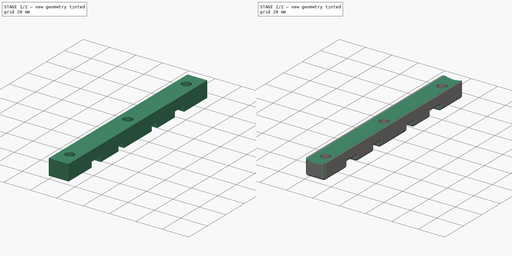
[diagram: build sequence overview — one tinted view per stage of 2, left to right]
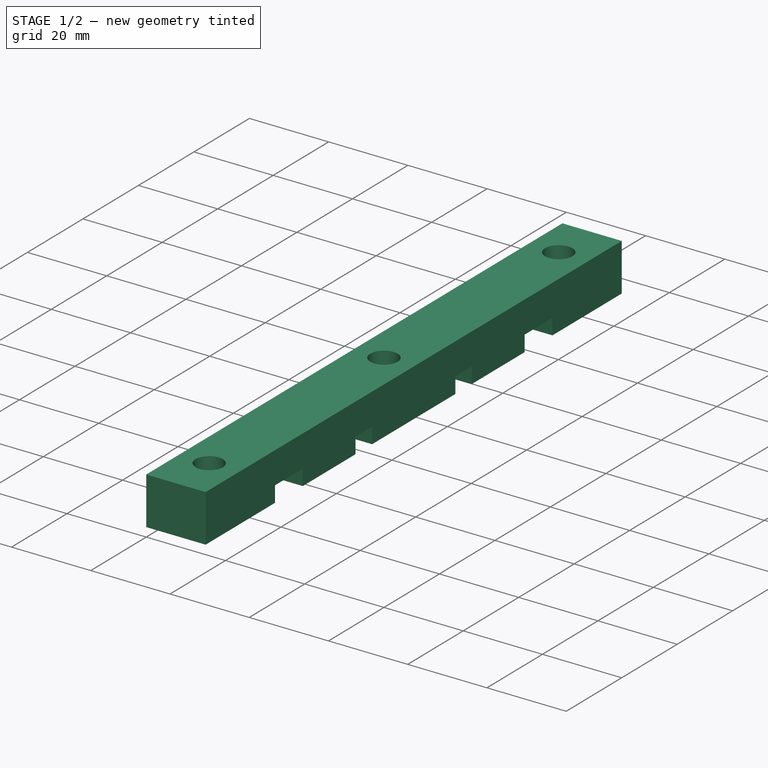
[diagram: stage 1 of 2 — iso view after this stage's code; geometry added in this stage tinted green]
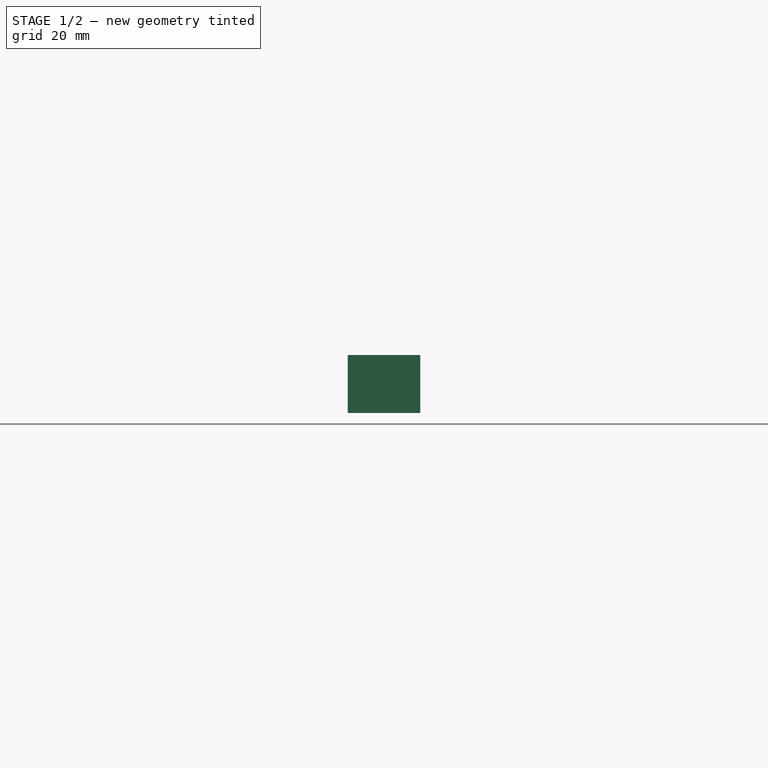
[diagram: stage 1 of 2 — front view after this stage's code; geometry added in this stage tinted green]
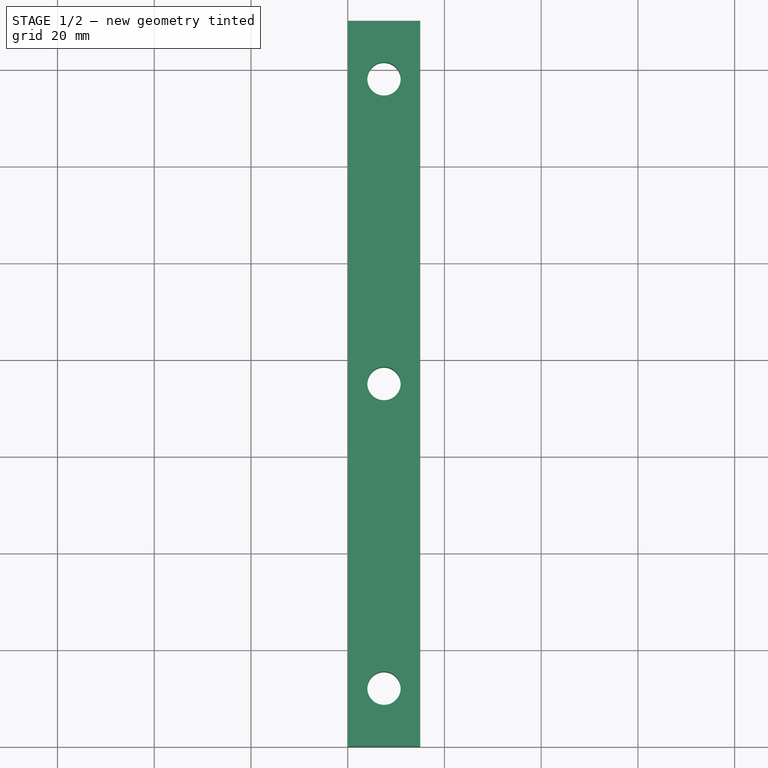
[diagram: stage 1 of 2 — top view after this stage's code; geometry added in this stage tinted green]
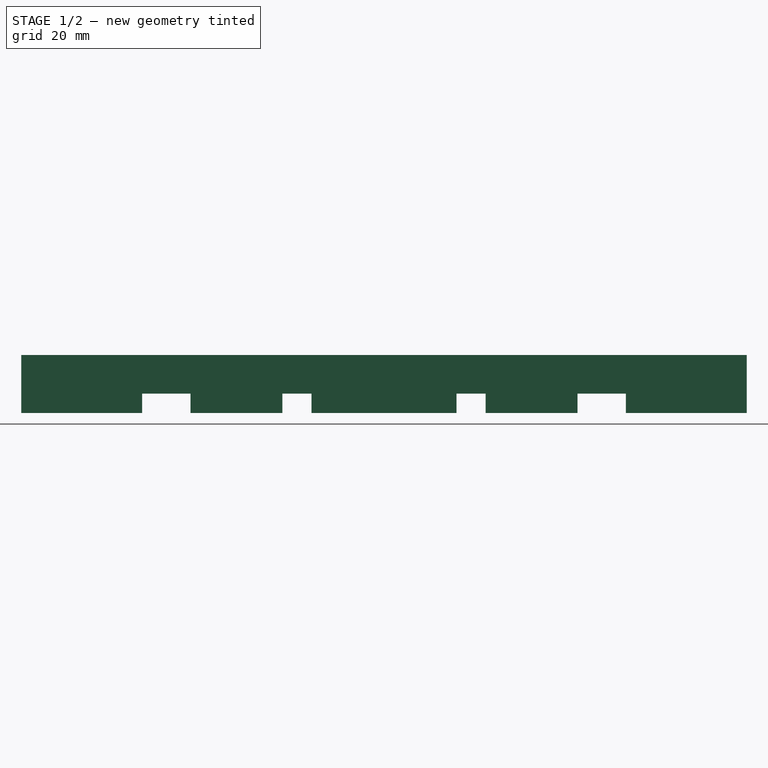
[diagram: stage 1 of 2 — right view after this stage's code; geometry added in this stage tinted green]
FCSTD DOCUMENT  (FreeCAD 0.19R24291 (Git))
Label: Flaschenhalter_Adapter_mit_Einsaetzen
License: All rights reserved
LicenseURL: http://en.wikipedia.org/wiki/All_rights_reserved
objects: Sketcher::SketchObject×3, PartDesign::Pocket×2, PartDesign::Pad×1, PartDesign::Fillet×1, PartDesign::Body×1
note: 12 computed .brp shape members not serialized (recipe doc carries the construction recipe); baked Part::Feature solids carry a one-line shape summary decoded from their .brp

FEATURE [Sketcher::SketchObject] Sketch
  FullyConstrained = true
  MapMode = 5
  Support = -> [XY_Plane]
  sketch-geometry (9):
    g0: LineSegment StartX=0 StartY=0 StartZ=0 EndX=15 EndY=0 EndZ=0
    g1: LineSegment StartX=15 StartY=0 StartZ=0 EndX=15 EndY=150 EndZ=0
    g2: LineSegment StartX=15 StartY=150 StartZ=0 EndX=0 EndY=150 EndZ=0
    g3: LineSegment StartX=0 StartY=150 StartZ=0 EndX=0 EndY=0 EndZ=0
    g4: Circle CenterX=7.5 CenterY=138 CenterZ=0 NormalX=0 NormalY=0 NormalZ=1 AngleXU=0 Radius=3.45
    g5: Circle CenterX=7.5 CenterY=75 CenterZ=0 NormalX=0 NormalY=0 NormalZ=1 AngleXU=0 Radius=3.45
    g6: Circle CenterX=7.5 CenterY=12 CenterZ=0 NormalX=0 NormalY=0 NormalZ=1 AngleXU=0 Radius=3.45
    g7: LineSegment StartX=7.5 StartY=138 StartZ=0 EndX=7.5 EndY=150 EndZ=0
    g8: LineSegment StartX=7.5 StartY=12 StartZ=0 EndX=7.5 EndY=0 EndZ=0
  constraints (26):
    c: Coincident(g0,g1)
    c: Coincident(g1,g2)
    c: Coincident(g2,g3)
    c: Coincident(g3,g0)
    c: Horizontal(g0)
    c: Horizontal(g2)
    c: Vertical(g1)
    c: Vertical(g3)
    c: Coincident(g0,g-1)
    c: DistanceY(g1,g1) = 150
    c: DistanceX(g2,g2) = 15
    c: Equal(g5,g4)
    c: Equal(g4,g6)
    c: Diameter(g4) = 6.9
    c: DistanceX(g0,g6) = 7.5
    c: DistanceX(g0,g5) = 7.5
    c: DistanceX(g0,g4) = 7.5
    c: DistanceY(g5,g4) = 63
    c: DistanceY(g6,g5) = 63
    c: Coincident(g7,g4)
    c: PointOnObject(g7,g2)
    c: Vertical(g7)
    c: Coincident(g8,g6)
    c: PointOnObject(g8,g0)
    c: Vertical(g8)
    c: Equal(g8,g7)
FEATURE [PartDesign::Pad] Pad
  Direction = (1,1,1)
  Length = 12
  Length2 = 100
  Profile = -> Sketch
  Type = 0
FEATURE [Sketcher::SketchObject] Sketch003
  FullyConstrained = true
  MapMode = 5
  Placement = pos=(0,0,0) rot=(0.57735,0.57735,0.57735;2.0944rad)
  Support = -> [YZ_Plane]
  sketch-geometry (18):
    g0: LineSegment StartX=25 StartY=0 StartZ=0 EndX=35 EndY=0 EndZ=0
    g1: LineSegment StartX=35 StartY=0 StartZ=0 EndX=35 EndY=4 EndZ=0
    g2: LineSegment StartX=35 StartY=4 StartZ=0 EndX=25 EndY=4 EndZ=0
    g3: LineSegment StartX=25 StartY=4 StartZ=0 EndX=25 EndY=0 EndZ=0
    g4: LineSegment StartX=54 StartY=4 StartZ=0 EndX=60 EndY=4 EndZ=0
    g5: LineSegment StartX=60 StartY=4 StartZ=0 EndX=60 EndY=0 EndZ=0
    g6: LineSegment StartX=60 StartY=0 StartZ=0 EndX=54 EndY=0 EndZ=0
    g7: LineSegment StartX=54 StartY=0 StartZ=0 EndX=54 EndY=4 EndZ=0
    g8: LineSegment StartX=115 StartY=4 StartZ=0 EndX=125 EndY=4 EndZ=0
    g9: LineSegment StartX=125 StartY=4 StartZ=0 EndX=125 EndY=0 EndZ=0
    g10: LineSegment StartX=125 StartY=0 StartZ=0 EndX=115 EndY=0 EndZ=0
    g11: LineSegment StartX=115 StartY=0 StartZ=0 EndX=115 EndY=4 EndZ=0
    g12: LineSegment StartX=90 StartY=0 StartZ=0 EndX=96 EndY=0 EndZ=0
    g13: LineSegment StartX=96 StartY=0 StartZ=0 EndX=96 EndY=4 EndZ=0
    g14: LineSegment StartX=96 StartY=4 StartZ=0 EndX=90 EndY=4 EndZ=0
    g15: LineSegment StartX=90 StartY=4 StartZ=0 EndX=90 EndY=0 EndZ=0
    g16: LineSegment StartX=35 StartY=0 StartZ=0 EndX=54 EndY=0 EndZ=0
    g17: LineSegment StartX=96 StartY=0 StartZ=0 EndX=115 EndY=0 EndZ=0
  constraints (52):
    c: Coincident(g0,g1)
    c: Coincident(g1,g2)
    c: Coincident(g2,g3)
    c: Coincident(g3,g0)
    c: Horizontal(g0)
    c: Horizontal(g2)
    c: Vertical(g1)
    c: Vertical(g3)
    c: PointOnObject(g0,g-1)
    c: Coincident(g4,g5)
    c: Coincident(g5,g6)
    c: Coincident(g6,g7)
    c: Coincident(g7,g4)
    c: Horizontal(g4)
    c: Horizontal(g6)
    c: Vertical(g5)
    c: Vertical(g7)
    c: PointOnObject(g5,g-1)
    c: Coincident(g8,g9)
    c: Coincident(g9,g10)
    c: Coincident(g10,g11)
    c: Coincident(g11,g8)
    c: Horizontal(g8)
    c: Horizontal(g10)
    c: Vertical(g9)
    c: Vertical(g11)
    c: PointOnObject(g10,g-1)
    c: DistanceX(g2,g2) = 10
    c: DistanceX(g8,g8) = 10
    c: Coincident(g12,g13)
    c: Coincident(g13,g14)
    c: Coincident(g14,g15)
    c: Coincident(g15,g12)
    c: Horizontal(g12)
    c: Horizontal(g14)
    c: Vertical(g13)
    c: Vertical(g15)
    c: PointOnObject(g12,g-1)
    c: DistanceX(g14,g14) = 6
    c: DistanceX(g4,g4) = 6
    c: Equal(g1,g7)
    c: Equal(g7,g13)
    c: Equal(g13,g9)
    c: DistanceY(g3,g3) = 4
    c: DistanceX(g-1,g0) = 25
    c: DistanceX(g-1,g9) = 125
    c: Coincident(g16,g0)
    c: Coincident(g16,g6)
    c: Coincident(g17,g12)
    c: Coincident(g17,g10)
    c: Equal(g17,g16)
    c: DistanceX(g5,g12) = 30
FEATURE [PartDesign::Pocket] Pocket002
  BaseFeature = -> Pad
  Length = 5
  Length2 = 100
  Profile = -> Sketch003
  Reversed = true
  Type = 1
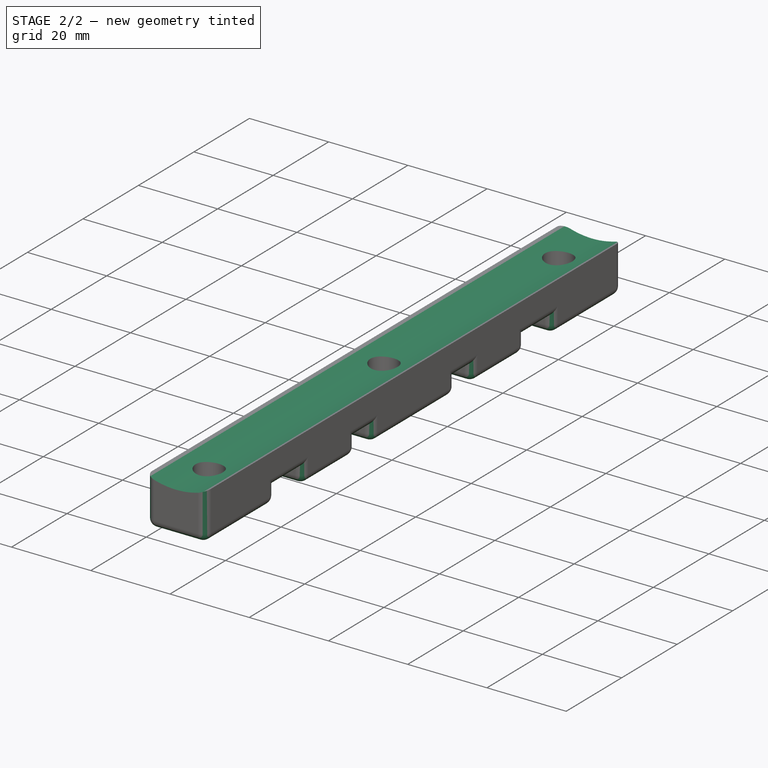
[diagram: stage 2 of 2 — iso view after this stage's code; geometry added in this stage tinted green]
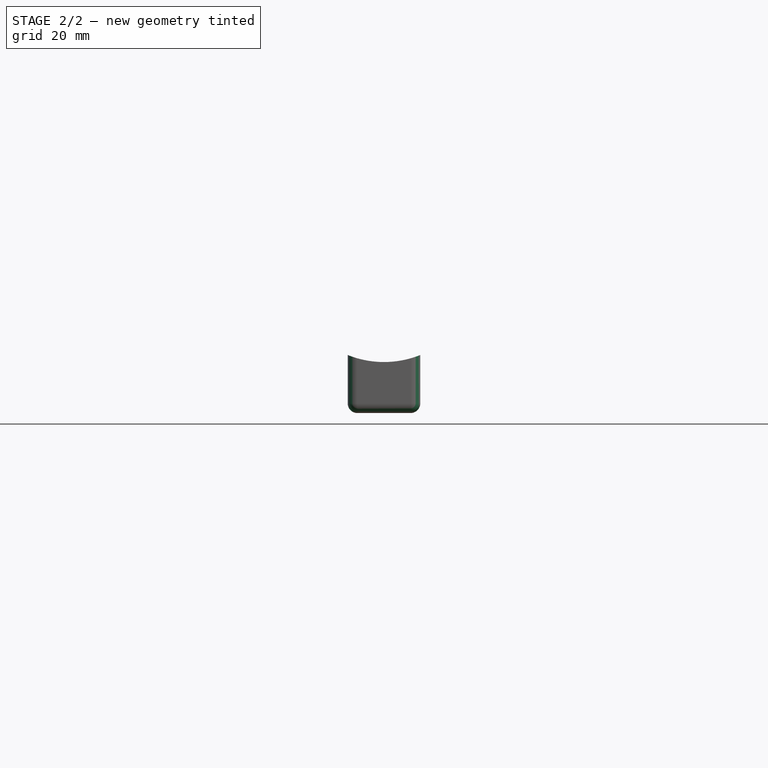
[diagram: stage 2 of 2 — front view after this stage's code; geometry added in this stage tinted green]
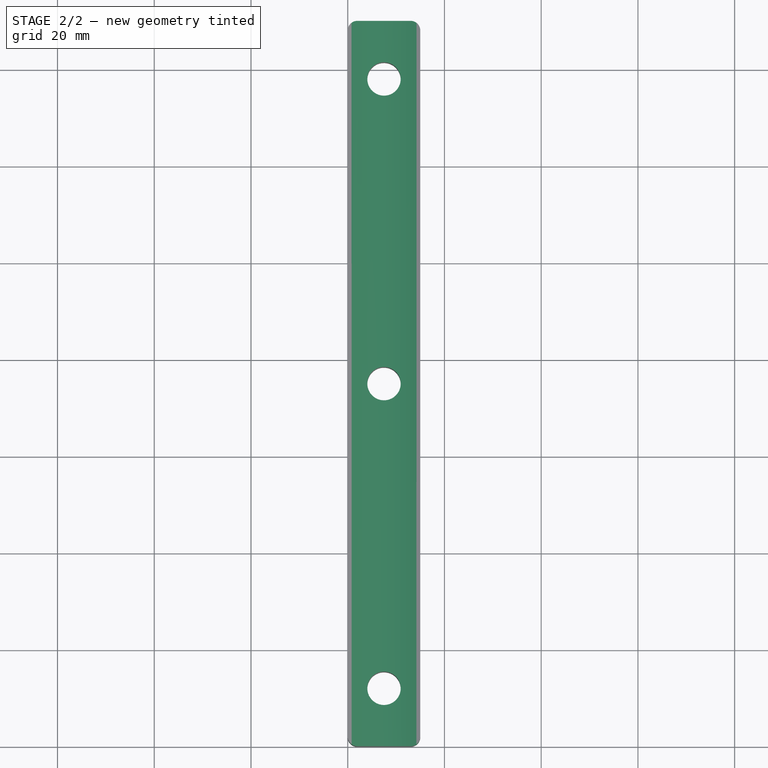
[diagram: stage 2 of 2 — top view after this stage's code; geometry added in this stage tinted green]
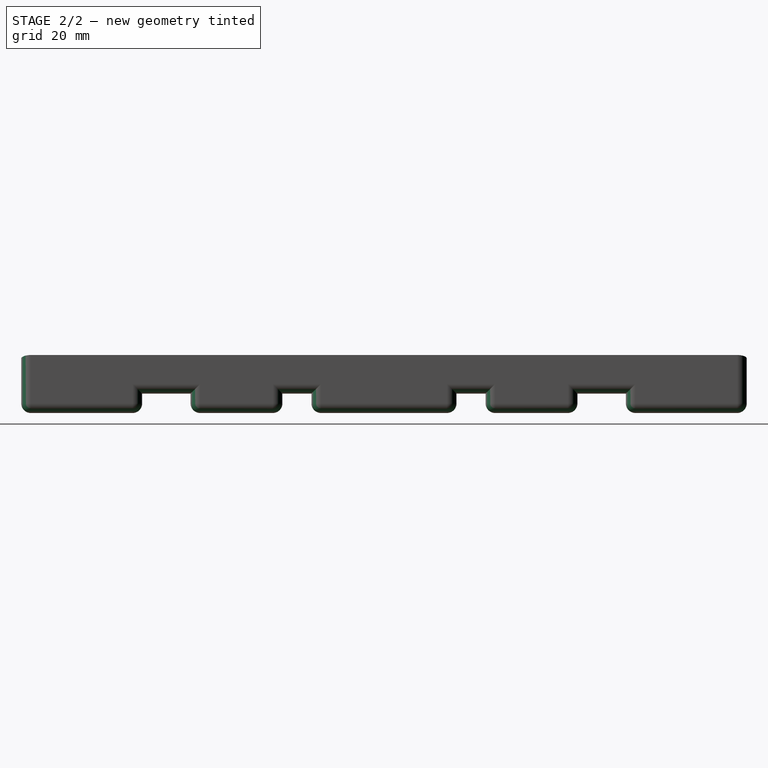
[diagram: stage 2 of 2 — right view after this stage's code; geometry added in this stage tinted green]
FEATURE [Sketcher::SketchObject] Sketch004
  FullyConstrained = true
  MapMode = 5
  Placement = pos=(0,0,0) rot=(1,0,0;1.5708rad)
  Support = -> [XZ_Plane]
  sketch-geometry (7):
    g0: Circle CenterX=7.5 CenterY=30.5405 CenterZ=0 NormalX=0 NormalY=0 NormalZ=1 AngleXU=0 Radius=20
    g1: LineSegment StartX=0 StartY=0 StartZ=0 EndX=15 EndY=0 EndZ=0
    g2: LineSegment StartX=0 StartY=0 StartZ=0 EndX=15 EndY=0 EndZ=0
    g3: LineSegment StartX=15 StartY=0 StartZ=0 EndX=15 EndY=12 EndZ=0
    g4: LineSegment StartX=15 StartY=12 StartZ=0 EndX=0 EndY=12 EndZ=0
    g5: LineSegment StartX=0 StartY=12 StartZ=0 EndX=0 EndY=0 EndZ=0
    g6: LineSegment StartX=7.5 StartY=10.5405 StartZ=0 EndX=7.5 EndY=12 EndZ=0
  constraints (21):
    c: Diameter(g0) = 40
    c: Coincident(g1,g-1)
    c: Horizontal(g1)
    c: DistanceX(g1,g1) = 15
    c: Coincident(g2,g3)
    c: Coincident(g3,g4)
    c: Coincident(g4,g5)
    c: Coincident(g5,g2)
    c: Horizontal(g2)
    c: Horizontal(g4)
    c: Vertical(g3)
    c: Vertical(g5)
    c: Coincident(g2,g-1)
    c: DistanceY(g3,g3) = 12
    c: DistanceX(g4,g4) = 15
    c: PointOnObject(g3,g0)
    c: PointOnObject(g4,g0)
    c: PointOnObject(g6,g0)
    c: PointOnObject(g6,g4)
    c: Vertical(g6)
    c: Perpendicular(g0,g6)
FEATURE [PartDesign::Pocket] Pocket003
  BaseFeature = -> Pocket002
  Length = 5
  Length2 = 100
  Profile = -> Sketch004
  Type = 1
FEATURE [PartDesign::Fillet] Fillet
  Base = -> Pocket003 [Edge9,Edge10,Edge11,Edge7,Edge6,Edge52,Edge5,Edge47,Edge46,Edge45,Edge44,Edge12,Edge1,Edge4,Edge2,Edge40,Edge16,Edge20,Edge36,Edge32,Edge24,Edge48,Edge66,Edge25,Edge13,Edge14,Edge15,Edge17,Edge18,Edge19,Edge21,Edge22,Edge23,Edge53,Edge56,Edge43,Edge42,Edge41,Edge57,Edge61,+8 more]
  BaseFeature = -> Pocket003
  Radius = 2
  SupportTransform = false
FEATURE [PartDesign::Body] Body
  Group = -> [Sketch,Pad,Sketch003,Pocket002,Sketch004,Pocket003,Fillet]
  Origin = -> Origin
  Tip = -> Fillet
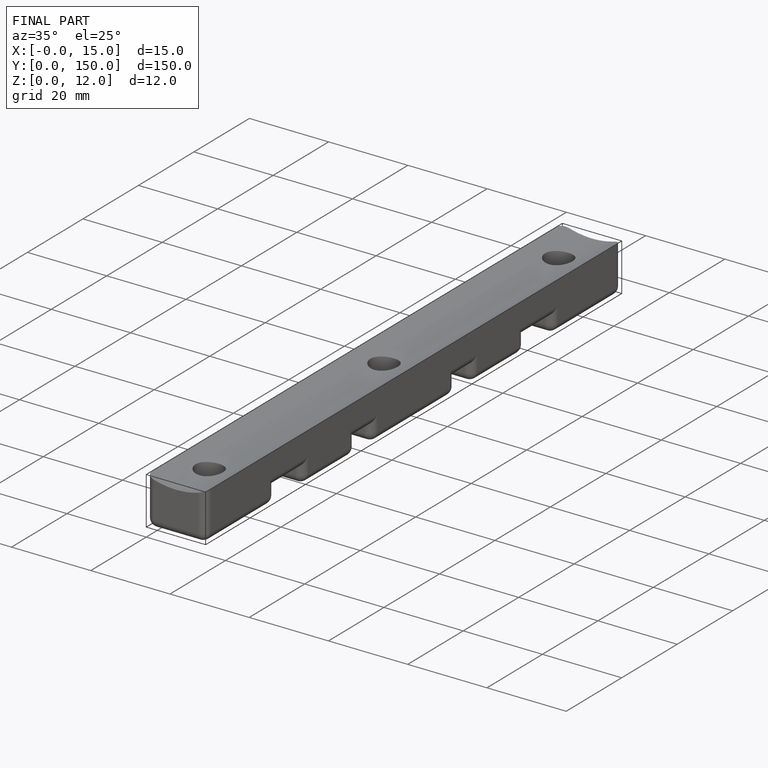
[diagram: finished part — iso view with bounding-box wireframe]
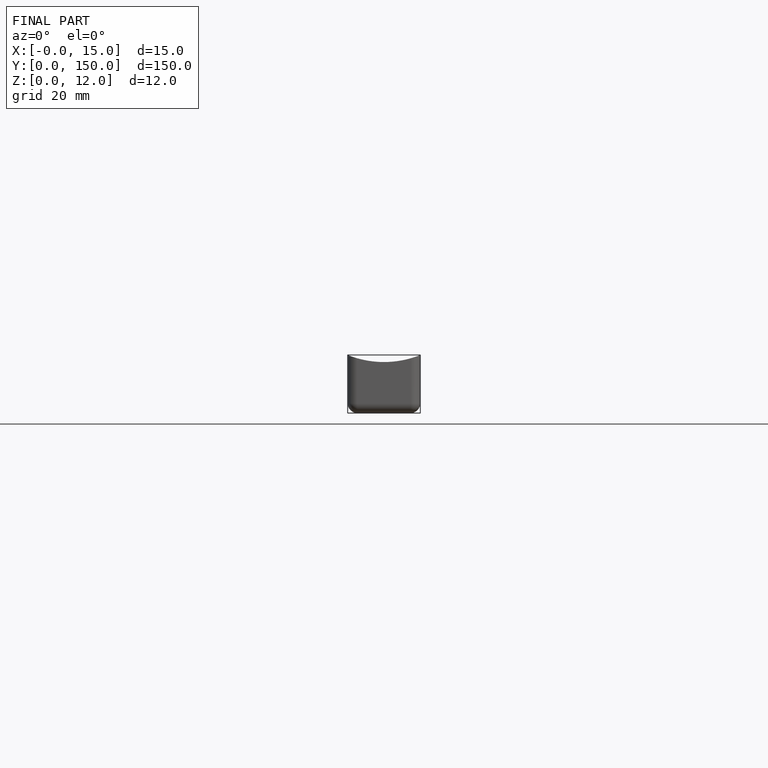
[diagram: finished part — front view with bounding-box wireframe]
